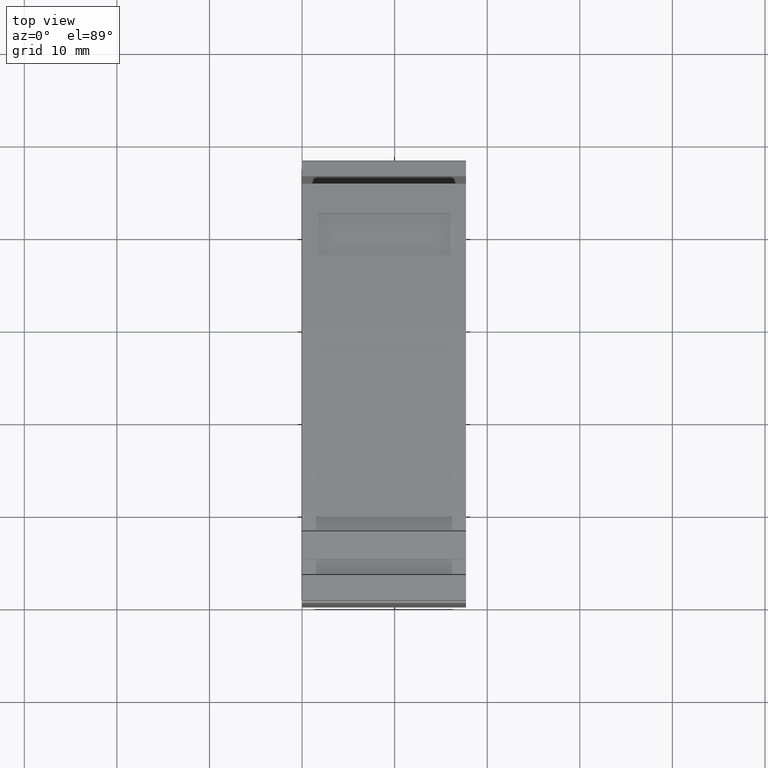
[diagram: clean part render]
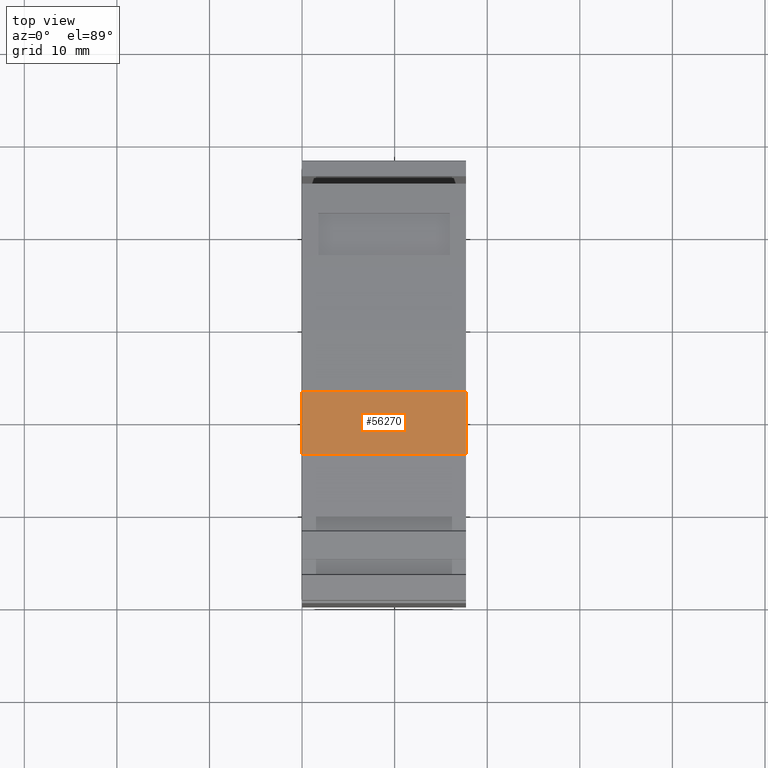
[diagram: same view with one face highlighted and labeled with its STEP entity id]
A machine part, top view. The second image highlights one B-rep face of the part: STEP entity #56270.
In plain terms, the highlighted planar face has unit normal (-0, 0.0168, -0.9999).
Its self-contained STEP definition (entity closure, byte-faithful):
#3080=CARTESIAN_POINT('',(144.176055192625,103.034223183396,
6.55548592465342));
#3090=VERTEX_POINT('',#3080);
#3120=CARTESIAN_POINT('',(111.236365997237,103.588362397261,
6.55548592610147));
#3130=DIRECTION('',(-0.999858526007718,0.0168204628257921,
4.39546155218746E-11));
#3140=VECTOR('',#3130,1.);
#3150=LINE('',#3120,#3140);
#3160=CARTESIAN_POINT('',(150.903288460466,102.921051995488,
6.55548592435768));
#3170=VERTEX_POINT('',#3160);
#3180=EDGE_CURVE('',#3170,#3090,#3150,.T.);
#10920=CARTESIAN_POINT('',(150.903288459689,102.921051995514,
-11.144514076686));
#10930=VERTEX_POINT('',#10920);
#10960=CARTESIAN_POINT('',(111.236365997237,103.588362397247,
-11.144514076686));
#10970=DIRECTION('',(-0.999858526007718,0.0168204628257921,
-4.66731600614143E-19));
#10980=VECTOR('',#10970,1.);
#10990=LINE('',#10960,#10980);
#11000=CARTESIAN_POINT('',(144.176055191811,103.034223183396,
-11.144514076686));
#11010=VERTEX_POINT('',#11000);
#11020=EDGE_CURVE('',#10930,#11010,#10990,.T.);
#55940=CARTESIAN_POINT('',(144.176055192112,103.034223183396,
-4.29451407564581));
#55950=DIRECTION('',(4.39608349722675E-11,2.77478453548207E-17,1.));
#55960=VECTOR('',#55950,1.);
#55970=LINE('',#55940,#55960);
#55980=EDGE_CURVE('',#11010,#3090,#55970,.T.);
#56110=CARTESIAN_POINT('',(150.903288458437,102.921051995527,
-21.9945164796207));
#56120=DIRECTION('',(-0.0168204628257921,-0.999858526007718,
7.39469334361565E-13));
#56130=DIRECTION('',(-0.999858526007718,0.0168204628257921,
4.39546151907084E-11));
#56140=AXIS2_PLACEMENT_3D('',#56110,#56120,#56130);
#56150=PLANE('',#56140);
#56160=ORIENTED_EDGE('',*,*,#55980,.T.);
#56170=ORIENTED_EDGE('',*,*,#11020,.T.);
#56180=CARTESIAN_POINT('',(150.90328845999,102.921051995488,
-4.29451407564581));
#56190=DIRECTION('',(4.39608349722675E-11,2.77478453546331E-17,1.));
#56200=VECTOR('',#56190,1.);
#56210=LINE('',#56180,#56200);
#56220=EDGE_CURVE('',#10930,#3170,#56210,.T.);
#56230=ORIENTED_EDGE('',*,*,#56220,.F.);
#56240=ORIENTED_EDGE('',*,*,#3180,.F.);
#56250=EDGE_LOOP('',(#56240,#56230,#56170,#56160));
#56260=FACE_OUTER_BOUND('',#56250,.T.);
#56270=ADVANCED_FACE('',(#56260),#56150,.F.);